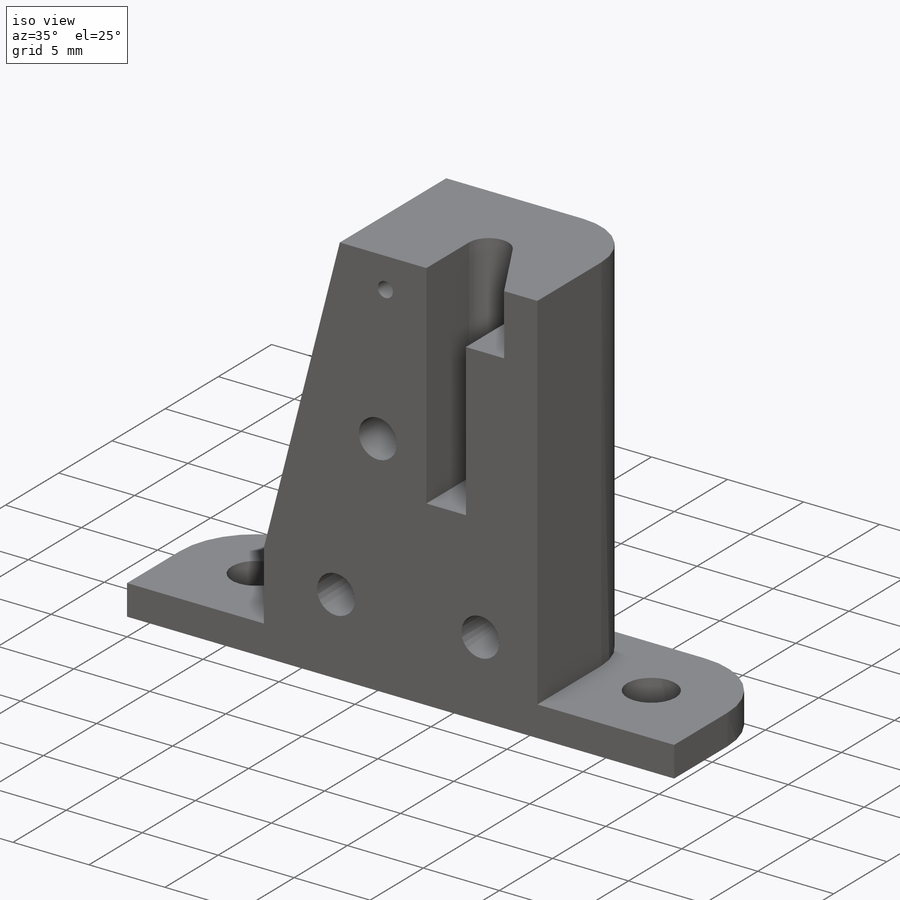
[diagram: iso view]
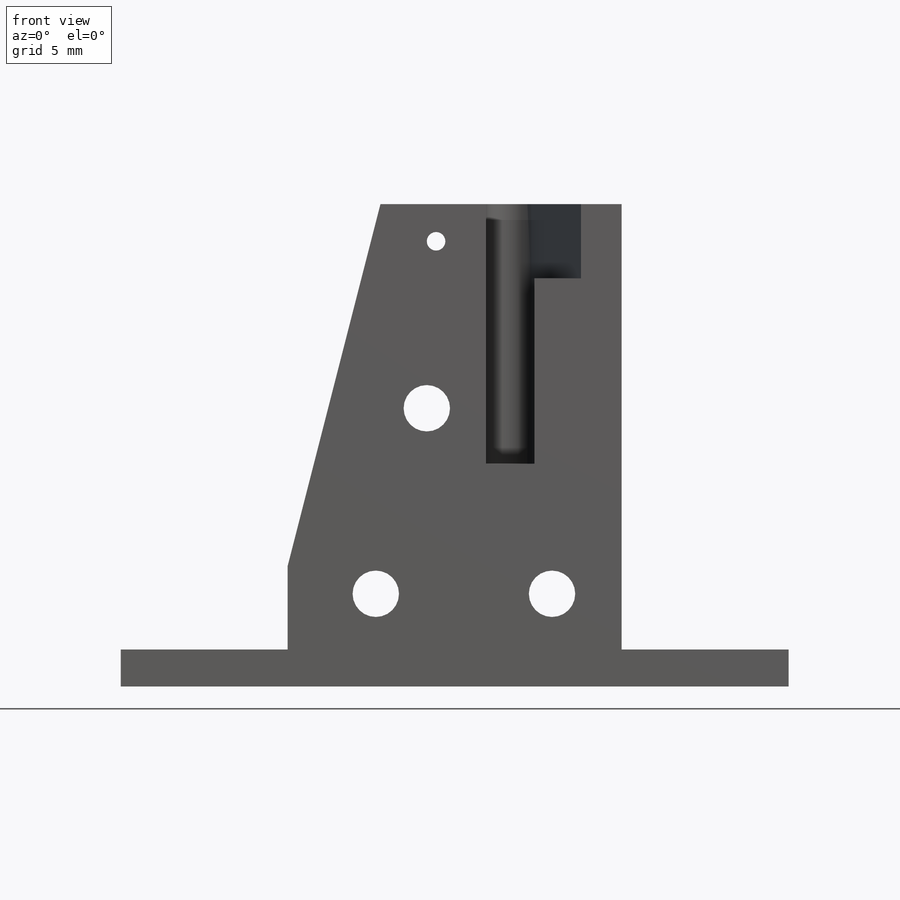
[diagram: front view]
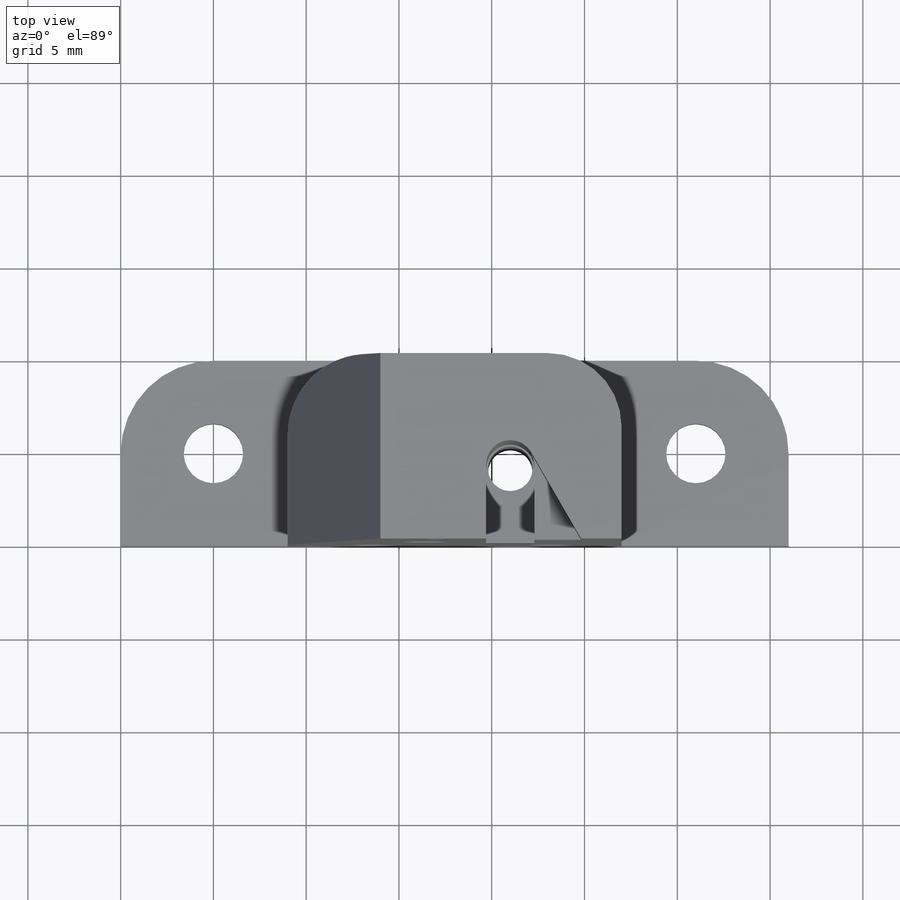
[diagram: top view]
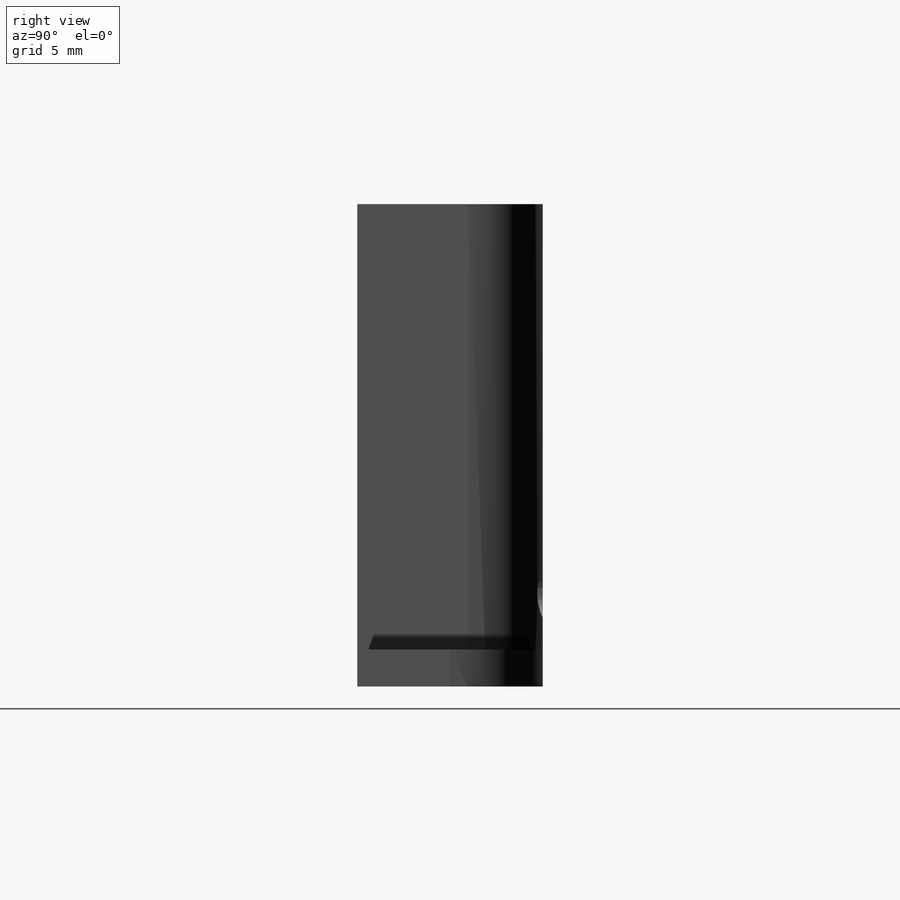
[diagram: right view]
SOLIDWORKS PART (.sldprt)
format: sldprt  version: not decoded by parser v0  size: 283,648 bytes
history: native  units: mm
features: sketch x6, cut_extrude x4, extrude x2, material x1 (+13 scaffold rows collapsed)
feature tree (26):
  scaffold x13  (default folders/planes/origin — collapsed)
  material  "ABS"
  sketch  "Sketch1"  dims[c1.D1=3.2mm c1.D2=3.2mm c1.D5=6.0mm c1.D6=3.5mm c1.D8=6.0mm c2.D5=12.0mm c2.D9=3.2mm c2.D10=3.2mm c2.D11=3.2mm c2.D4=5.0mm c3.D5=3.2mm c3.D6=3.2mm c3.D2=15.0mm c3.D3=12.5mm c3.D4=16.0mm c3.D7=8.0mm c4.D4=8.0mm c4.D3=5.0mm c4.D9=~13.246951mm c4.D2=36.0mm c5.D9=16.0mm c5.D10=13.0mm c5.D11=~17.476047mm c5.D1=18.0mm c5.D3=10.0mm c5.D6=1.4mm]
  extrude  "Boss-Extrude1"  Depth=2mm
  sketch  "Sketch2"  dims[D2=4.0mm D1=10.0mm D3=18.0mm]
  extrude  "Boss-Extrude2"  Depth=26mm
  sketch  "Sketch3"  dims[D1=2.4mm D2=4.0mm D3=6.0mm]
  cut_extrude  "Cut-Extrude1"  [1 undecoded]
  sketch  "Sketch4"  dims[c1.D2=1.3mm c1.D1=~4.57601mm c2.D1=120.0deg]
  cut_extrude  "Cut-Extrude2"  Depth=4mm
  sketch  "Sketch5"
  cut_extrude  "Cut-Extrude3"  Depth=14mm
  sketch  "Sketch6"  dims[c1.D1=1.0mm c1.D2=1.0mm c1.D3=1.0mm c1.D4=2.5mm c1.D5=2.5mm c2.D3=1.0mm c2.D6=2.5mm c2.D7=2.5mm c2.D8=2.5mm c2.D9=2.5mm c3.D3=1.0mm c3.D6=2.5mm c3.D9=2.5mm c3.D2=2.0mm c4.D3=2.5mm c4.D5=11.0mm c5.D3=10.0mm c5.D6=10.5mm c5.D7=9.5mm c5.D8=5.0mm c5.D9=3.75mm c5.D10=4.5mm c5.D11=13.0mm c6.D10=6.5mm c6.D11=13.0mm c6.D3=10.0mm c6.D6=10.5mm c6.D9=3.75mm]
  cut_extrude  "Cut-Extrude4"  [1 undecoded]
decode coverage: 9 of 12 modeling features carry decoded parameters
note: ~ marks probable driven/reference dimensions
note: 2 parameter values undecoded
note: suppression state not decoded; provenance and decode notes live in map.json
